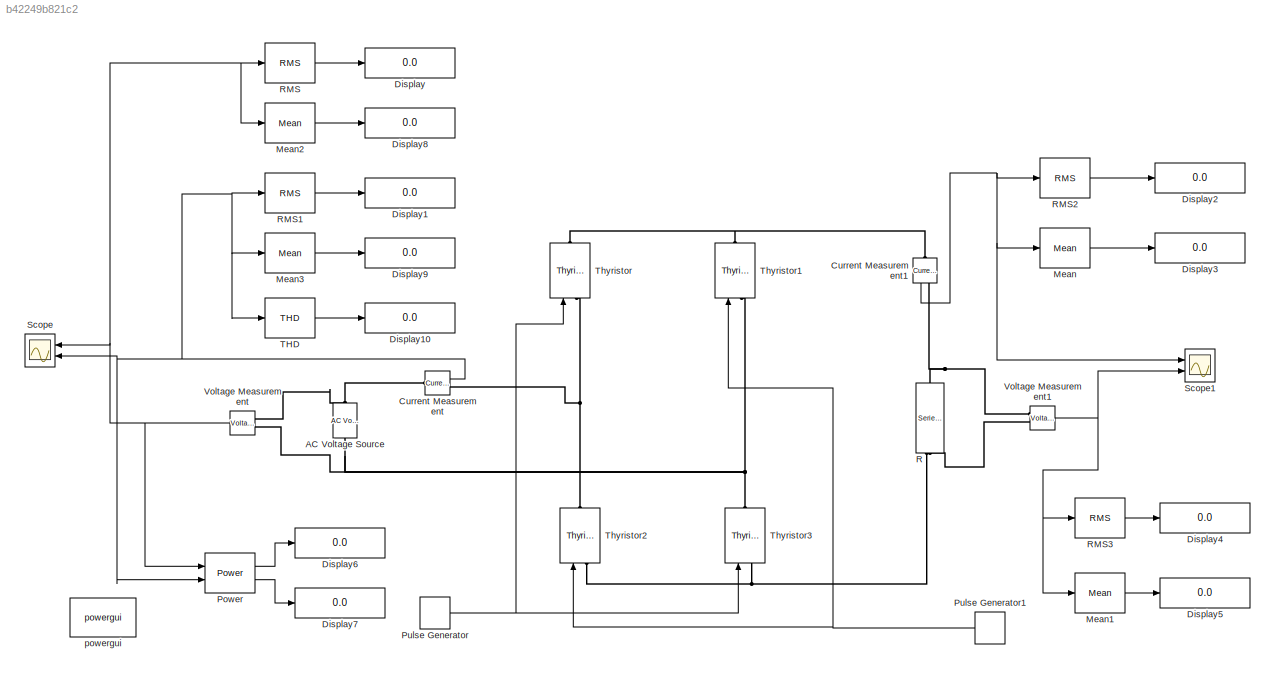
MODEL slx_b42249b821c2
KIND model
BLOCK [Reference] AC Voltage Source  REF=powerlib/Electrical
Sources/AC Voltage Source
  Amplitude = 50*sqrt(2)
  Frequency = 50
  Measurements = None
  Phase = 0
  Ports = [0, 0, 0, 0, 0, 1, 1]
  SampleTime = 0
  SourceBlock = powerlib/Electrical\nSources/AC Voltage Source
  SourceType = AC Voltage Source
BLOCK [Reference] Current Measurement  REF=powerlib/Measurements/Current Measurement
  OutputType = Complex
  PSBequivalent = 0
  PhasorSimulation = off
  Ports = [0, 1, 0, 0, 0, 1, 1]
  SourceBlock = powerlib/Measurements/Current Measurement
  SourceType = Current Measurement
  UserDataPersistent = on
BLOCK [Reference] Current Measurement1  REF=powerlib/Measurements/Current Measurement
  OutputType = Complex
  PSBequivalent = 0
  PhasorSimulation = off
  Ports = [0, 1, 0, 0, 0, 1, 1]
  SourceBlock = powerlib/Measurements/Current Measurement
  SourceType = Current Measurement
  UserDataPersistent = on
BLOCK [Display] Display
  Decimation = 1
  Ports = [1]
BLOCK [Display] Display1
  Decimation = 1
  Ports = [1]
BLOCK [Display] Display10
  Decimation = 1
  Ports = [1]
BLOCK [Display] Display2
  Decimation = 1
  Ports = [1]
BLOCK [Display] Display3
  Decimation = 1
  Ports = [1]
BLOCK [Display] Display4
  Decimation = 1
  Ports = [1]
BLOCK [Display] Display5
  Decimation = 1
  Ports = [1]
BLOCK [Display] Display6
  Decimation = 1
  Ports = [1]
BLOCK [Display] Display7
  Decimation = 1
  Ports = [1]
BLOCK [Display] Display8
  Decimation = 1
  Ports = [1]
BLOCK [Display] Display9
  Decimation = 1
  Ports = [1]
BLOCK [Reference] Mean  REF=powerlib_meascontrol/Measurements/Mean
  Freq = 50
  Ports = [1, 1]
  SourceBlock = powerlib_meascontrol/Measurements/Mean
  SourceType = Mean
  Ts = 0
  Vinit = 0
BLOCK [Reference] Mean1  REF=powerlib_meascontrol/Measurements/Mean
  Freq = 50
  Ports = [1, 1]
  SourceBlock = powerlib_meascontrol/Measurements/Mean
  SourceType = Mean
  Ts = 0
  Vinit = 0
BLOCK [Reference] Mean2  REF=powerlib_meascontrol/Measurements/Mean
  Freq = 50
  Ports = [1, 1]
  SourceBlock = powerlib_meascontrol/Measurements/Mean
  SourceType = Mean
  Ts = 0
  Vinit = 0
BLOCK [Reference] Mean3  REF=powerlib_meascontrol/Measurements/Mean
  Freq = 50
  Ports = [1, 1]
  SourceBlock = powerlib_meascontrol/Measurements/Mean
  SourceType = Mean
  Ts = 0
  Vinit = 0
BLOCK [Reference] Power  REF=powerlib_meascontrol/Measurements/Power
  Freq = 60
  Iinit = [1, 0]
  Ports = [2, 2]
  SourceBlock = powerlib_meascontrol/Measurements/Power
  SourceType = Power
  Ts = 0
  Vinit = [1, 0]
BLOCK [DiscretePulseGenerator] Pulse Generator
  Period = 0.02
  PhaseDelay = 0.02/4
  Ports = [0, 1]
  PulseType = Time based
  PulseWidth = 5
BLOCK [DiscretePulseGenerator] Pulse Generator1
  Period = 0.02
  PhaseDelay = 0.01 + 0.02/4
  Ports = [0, 1]
  PulseType = Time based
  PulseWidth = 5
BLOCK [Reference] R  REF=powerlib/Elements/Series RLC Branch
  BranchType = R
  Capacitance = 1e-6
  Inductance = 150e-3
  InitialCurrent = 0
  InitialVoltage = 0
  LConnTagsString = __new0
  Measurements = None
  Ports = [0, 0, 0, 0, 0, 1, 1]
  RConnTagsString = __new0
  Resistance = 50.8
  SetiL0 = off
  Setx0 = off
  SourceBlock = powerlib/Elements/Series RLC Branch
  SourceType = Series RLC Branch
BLOCK [Reference] RMS  REF=powerlib_meascontrol/Measurements/RMS
  Freq = 50
  Ports = [1, 1]
  RMSInit = 120
  SourceBlock = powerlib_meascontrol/Measurements/RMS
  SourceType = RMS
  TrueRMS = on
  Ts = 0
BLOCK [Reference] RMS1  REF=powerlib_meascontrol/Measurements/RMS
  Freq = 50
  Ports = [1, 1]
  RMSInit = 120
  SourceBlock = powerlib_meascontrol/Measurements/RMS
  SourceType = RMS
  TrueRMS = on
  Ts = 0
BLOCK [Reference] RMS2  REF=powerlib_meascontrol/Measurements/RMS
  Freq = 50
  Ports = [1, 1]
  RMSInit = 120
  SourceBlock = powerlib_meascontrol/Measurements/RMS
  SourceType = RMS
  TrueRMS = on
  Ts = 0
BLOCK [Reference] RMS3  REF=powerlib_meascontrol/Measurements/RMS
  Freq = 50
  Ports = [1, 1]
  RMSInit = 120
  SourceBlock = powerlib_meascontrol/Measurements/RMS
  SourceType = RMS
  TrueRMS = on
  Ts = 0
BLOCK [Scope] Scope
  Floating = off
  NumInputPorts = 2
  Ports = [2]
  ShowLegends = off
  YMax = 5~5
  YMin = -5~-5
BLOCK [Scope] Scope1
  Floating = off
  NumInputPorts = 2
  Ports = [2]
  SaveName = ScopeData1
  ShowLegends = off
  YMax = 5~5
  YMin = -5~-5
BLOCK [Reference] THD  REF=powerlib_meascontrol/Measurements/THD
  Freq = 60
  Ports = [1, 1]
  SourceBlock = powerlib_meascontrol/Measurements/THD
  SourceType = THD
  Ts = 0
BLOCK [Reference] Thyristor  REF=powerlib/Power
Electronics/Thyristor
  Cs = 250e-9
  IC = 0
  Lon = 0
  Measurements = off
  Ports = [1, 0, 0, 0, 0, 1, 1]
  Ron = 0.001
  Rs = 500
  SourceBlock = powerlib/Power\nElectronics/Thyristor
  SourceType = Thyristor
  Vf = 0.8
BLOCK [Reference] Thyristor1  REF=powerlib/Power
Electronics/Thyristor
  Cs = 250e-9
  IC = 0
  Lon = 0
  Measurements = off
  Ports = [1, 0, 0, 0, 0, 1, 1]
  Ron = 0.001
  Rs = 500
  SourceBlock = powerlib/Power\nElectronics/Thyristor
  SourceType = Thyristor
  Vf = 0.8
BLOCK [Reference] Thyristor2  REF=powerlib/Power
Electronics/Thyristor
  Cs = 250e-9
  IC = 0
  Lon = 0
  Measurements = off
  Ports = [1, 0, 0, 0, 0, 1, 1]
  Ron = 0.001
  Rs = 500
  SourceBlock = powerlib/Power\nElectronics/Thyristor
  SourceType = Thyristor
  Vf = 0.8
BLOCK [Reference] Thyristor3  REF=powerlib/Power
Electronics/Thyristor
  Cs = 250e-9
  IC = 0
  Lon = 0
  Measurements = off
  Ports = [1, 0, 0, 0, 0, 1, 1]
  Ron = 0.001
  Rs = 500
  SourceBlock = powerlib/Power\nElectronics/Thyristor
  SourceType = Thyristor
  Vf = 0.8
BLOCK [Reference] Voltage Measurement  REF=powerlib/Measurements/Voltage Measurement
  OutputType = Complex
  PSBequivalent = 0
  PhasorSimulation = off
  Ports = [0, 1, 0, 0, 0, 2]
  SourceBlock = powerlib/Measurements/Voltage Measurement
  SourceType = Voltage Measurement
  UserDataPersistent = on
BLOCK [Reference] Voltage Measurement1  REF=powerlib/Measurements/Voltage Measurement
  OutputType = Complex
  PSBequivalent = 0
  PhasorSimulation = off
  Ports = [0, 1, 0, 0, 0, 2]
  SourceBlock = powerlib/Measurements/Voltage Measurement
  SourceType = Voltage Measurement
  UserDataPersistent = on
BLOCK [Reference] powergui  REF=powerlib/powergui
  DisableRonSwitches = off
  DisableSnubberDevices = off
  DisableVfSwitches = off
  DisplayEquations = off
  DisplayStyle = 1
  EnableUseOfTLC = off
  ErrMax = 1e-4
  Frange = [0:2:500]
  FreqAxis = off
  FunctionMessages = off
  HookPort = off
  Interpol = off
  Iterations = 50
  MaxFrequency = 1000
  Pbase = 100e6
  Ports = []
  Priority = 1
  ResistiveCurrentMeasurement = off
  RestoreLinks = warning
  RmsSteady = 1
  SPID = off
  SampleTime = 50e-6
  ShowGrid = off
  SolverType = Tustin
  SourceBlock = powerlib/powergui
  SourceType = PSB option menu block
  StartTime = 0.0
  SwTol = 0
  Ts = 0
  UnitsV = kV
  UnitsW = MW
  UserDataPersistent = on
  Xlog = on
  Ylog = off
  ZoomFFT = off
  cycles = 1
  display = off
  echomessages = off
  frequency = 60
  frequencyindice = 50
  frequencyindicesteady = 1
  fundamental = 60
  methode = off
  save = off
  structure = 0
  variable = ZData
  x0status = blocks
NET Current Measurement1:1 -> Mean:1, RMS2:1, Scope1:1
NET Current Measurement:1 -> Mean3:1, Power:2, RMS1:1, Scope:2, THD:1
LINE Mean1:1 -> Display5:1
LINE Mean2:1 -> Display8:1
LINE Mean3:1 -> Display9:1
LINE Mean:1 -> Display3:1
LINE Power:1 -> Display6:1
LINE Power:2 -> Display7:1
NET Pulse Generator1:1 -> Thyristor1:1, Thyristor2:1
NET Pulse Generator:1 -> Thyristor3:1, Thyristor:1
LINE RMS1:1 -> Display1:1
LINE RMS2:1 -> Display2:1
LINE RMS3:1 -> Display4:1
LINE RMS:1 -> Display:1
LINE THD:1 -> Display10:1
NET Voltage Measurement1:1 -> Mean1:1, RMS3:1, Scope1:2
NET Voltage Measurement:1 -> Mean2:1, Power:1, RMS:1, Scope:1
PNET net1: AC Voltage Source:LConn1 -- Thyristor1:LConn1 -- Thyristor3:RConn1 -- Voltage Measurement:LConn2
PNET net2: AC Voltage Source:RConn1 -- Current Measurement:LConn1 -- Voltage Measurement:LConn1
PNET net3: Current Measurement1:LConn1 -- Thyristor1:RConn1 -- Thyristor:RConn1
PNET net4: Current Measurement1:RConn1 -- R:LConn1 -- Voltage Measurement1:LConn1
PNET net5: Current Measurement:RConn1 -- Thyristor2:RConn1 -- Thyristor:LConn1
PNET net6: R:RConn1 -- Thyristor2:LConn1 -- Thyristor3:LConn1 -- Voltage Measurement1:LConn2
note: NET lines group one-source signal fan-out (src -> all destinations, sorted); 1:1 wires keep LINE; PNET lines group multi-terminal physical nets as a canonical sorted terminal list (undirected conserving connections); 2-terminal nets keep the pairwise PLINE form
